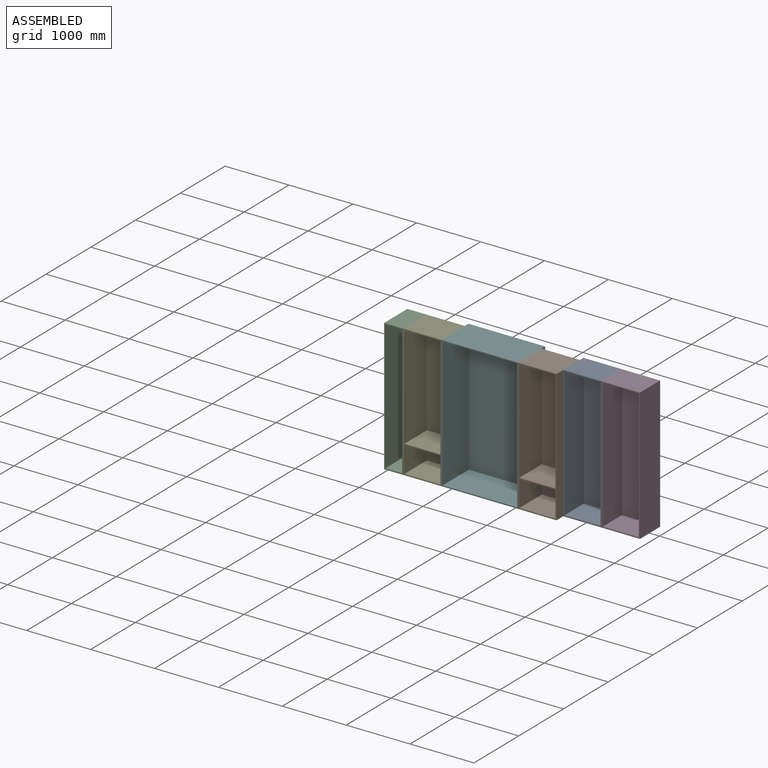
[diagram: assembled view]
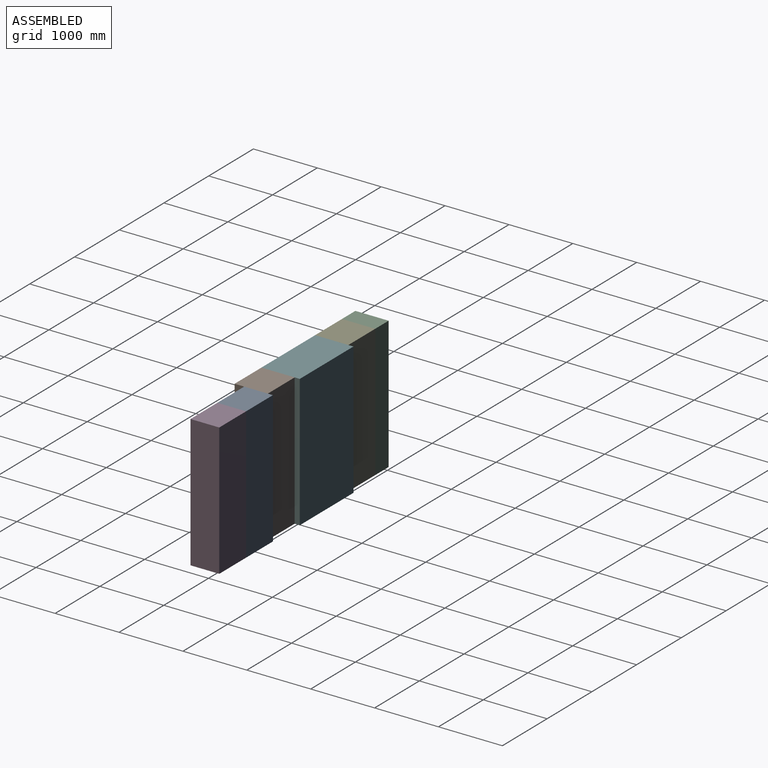
[diagram: assembled view, second angle]
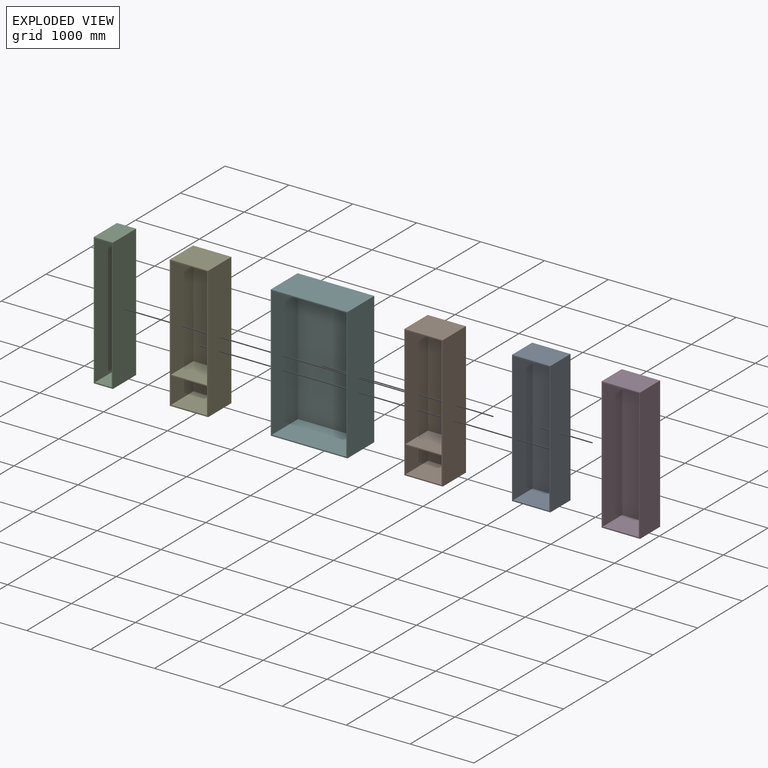
[diagram: exploded view]
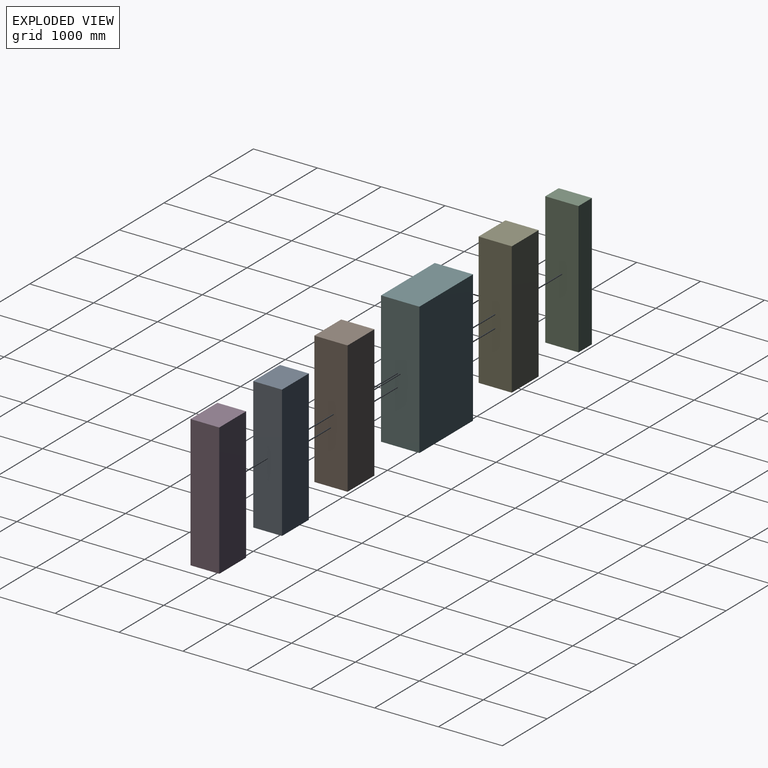
[diagram: exploded view, second angle]
ASSEMBLY  parts=6 mates=5
PART A: 11 faces, bbox 600x450x2070 mm
  f0: plane 2070x600mm, normal (0,-1,0), area 94824mm2, adj f1,f2,f3,f4,f6,f7,f8,f9
  f1: plane 2070x450mm, normal (-1,0,0), area 931500mm2, adj f0,f2,f4,f5
  f2: plane 600x450mm, normal (0,0,-1), area 270000mm2, adj f0,f1,f3,f5
  f3: plane 2070x450mm, normal (1,0,0), area 931500mm2, adj f0,f2,f4,f5
  f4: plane 600x450mm, normal (0,0,1), area 270000mm2, adj f0,f1,f3,f5
  f5: plane 2070x600mm, normal (0,1,0), area 1242000mm2, adj f1,f2,f3,f4
  f6: plane 2034x432mm, normal (1,0,0), area 878688mm2, adj f0,f7,f9,f10
  f7: plane 564x432mm, normal (0,0,1), area 243648mm2, adj f0,f6,f8,f10
  f8: plane 2034x432mm, normal (-1,0,0), area 878688mm2, adj f0,f7,f9,f10
  f9: plane 564x432mm, normal (0,0,-1), area 243648mm2, adj f0,f6,f8,f10
  f10: plane 2034x564mm, normal (0,-1,0), area 1147176mm2, adj f6,f7,f8,f9
PART B: 14 faces, bbox 600x520x2070 mm
  f0: plane 2034x502mm, normal (-1,0,0), area 1012068mm2, adj f1,f8,f9,f10,f11,f12,f13
  f1: plane 2070x600mm, normal (0,-1,0), area 104976mm2, adj f0,f2,f3,f4,f5,f7,f8,f9
  f2: plane 2070x520mm, normal (-1,0,0), area 1076400mm2, adj f1,f3,f5,f6
  f3: plane 600x520mm, normal (0,0,-1), area 312000mm2, adj f1,f2,f4,f6
  f4: plane 2070x520mm, normal (1,0,0), area 1076400mm2, adj f1,f3,f5,f6
  f5: plane 600x520mm, normal (0,0,1), area 312000mm2, adj f1,f2,f4,f6
  f6: plane 2070x600mm, normal (0,1,0), area 1242000mm2, adj f2,f3,f4,f5
  f7: plane 2034x502mm, normal (1,0,0), area 1012068mm2, adj f1,f8,f9,f10,f11,f12,f13
  f8: plane 564x502mm, normal (0,0,1), area 283128mm2, adj f0,f1,f7,f10
  f9: plane 564x502mm, normal (0,0,-1), area 283128mm2, adj f0,f1,f7,f10
  f10: plane 2034x564mm, normal (0,-1,0), area 1147176mm2, adj f0,f7,f8,f9
  f11: plane 564x500mm, normal (0,0,-1), area 282000mm2, adj f0,f1,f7,f13
  f12: plane 564x500mm, normal (0,0,1), area 282000mm2, adj f0,f1,f7,f13
  f13: plane 564x18mm, normal (0,1,0), area 10152mm2, adj f0,f7,f11,f12
PART C: 11 faces, bbox 300x520x2070 mm
  f0: plane 2070x300mm, normal (0,-1,0), area 84024mm2, adj f1,f2,f3,f4,f6,f7,f8,f9
  f1: plane 2070x520mm, normal (-1,0,0), area 1076400mm2, adj f0,f2,f4,f5
  f2: plane 520x300mm, normal (0,0,-1), area 156000mm2, adj f0,f1,f3,f5
  f3: plane 2070x520mm, normal (1,0,0), area 1076400mm2, adj f0,f2,f4,f5
  f4: plane 520x300mm, normal (0,0,1), area 156000mm2, adj f0,f1,f3,f5
  f5: plane 2070x300mm, normal (0,1,0), area 621000mm2, adj f1,f2,f3,f4
  f6: plane 2034x502mm, normal (1,0,0), area 1021068mm2, adj f0,f7,f9,f10
  f7: plane 502x264mm, normal (0,0,1), area 132528mm2, adj f0,f6,f8,f10
  f8: plane 2034x502mm, normal (-1,0,0), area 1021068mm2, adj f0,f7,f9,f10
  f9: plane 502x264mm, normal (0,0,-1), area 132528mm2, adj f0,f6,f8,f10
  f10: plane 2034x264mm, normal (0,-1,0), area 536976mm2, adj f6,f7,f8,f9
PART D: same geometry as A
PART E: same geometry as B
PART F: 11 faces, bbox 1200x600x2070 mm
  f0: plane 2070x1200mm, normal (0,-1,0), area 116424mm2, adj f1,f2,f3,f4,f6,f7,f8,f9
  f1: plane 2070x600mm, normal (-1,0,0), area 1242000mm2, adj f0,f2,f4,f5
  f2: plane 1200x600mm, normal (0,0,-1), area 720000mm2, adj f0,f1,f3,f5
  f3: plane 2070x600mm, normal (1,0,0), area 1242000mm2, adj f0,f2,f4,f5
  f4: plane 1200x600mm, normal (0,0,1), area 720000mm2, adj f0,f1,f3,f5
  f5: plane 2070x1200mm, normal (0,1,0), area 2484000mm2, adj f1,f2,f3,f4
  f6: plane 2034x582mm, normal (1,0,0), area 1183788mm2, adj f0,f7,f9,f10
  f7: plane 1164x582mm, normal (0,0,1), area 677448mm2, adj f0,f6,f8,f10
  f8: plane 2034x582mm, normal (-1,0,0), area 1183788mm2, adj f0,f7,f9,f10
  f9: plane 1164x582mm, normal (0,0,-1), area 677448mm2, adj f0,f6,f8,f10
  f10: plane 2034x1164mm, normal (0,-1,0), area 2367576mm2, adj f6,f7,f8,f9
PLACE A t=(1728.38,668.45,-264.91)mm
PLACE B t=(1128.38,518.45,-264.91)mm
PLACE C t=(-971.62,518.45,-264.91)mm
PLACE D t=(2328.38,668.45,-264.91)mm
PLACE E t=(-671.62,518.45,-264.91)mm
PLACE F t=(-71.62,518.45,-264.91)mm
MATE fastened B.f4 <-> A.f1  axis (1,0,0) through (1728.38,1038.45,1805.09)mm
MATE fastened C.f3 <-> E.f2  axis (1,0,0) through (-671.62,518.45,1805.09)mm
MATE fastened E.f4 <-> F.f1  axis (1,0,0) through (-71.62,518.45,1805.09)mm
MATE fastened A.f3 <-> D.f1  axis (1,0,0) through (2328.38,668.45,1805.09)mm
MATE fastened F.f3 <-> B.f2  axis (1,0,0) through (1128.38,518.45,1805.09)mm
